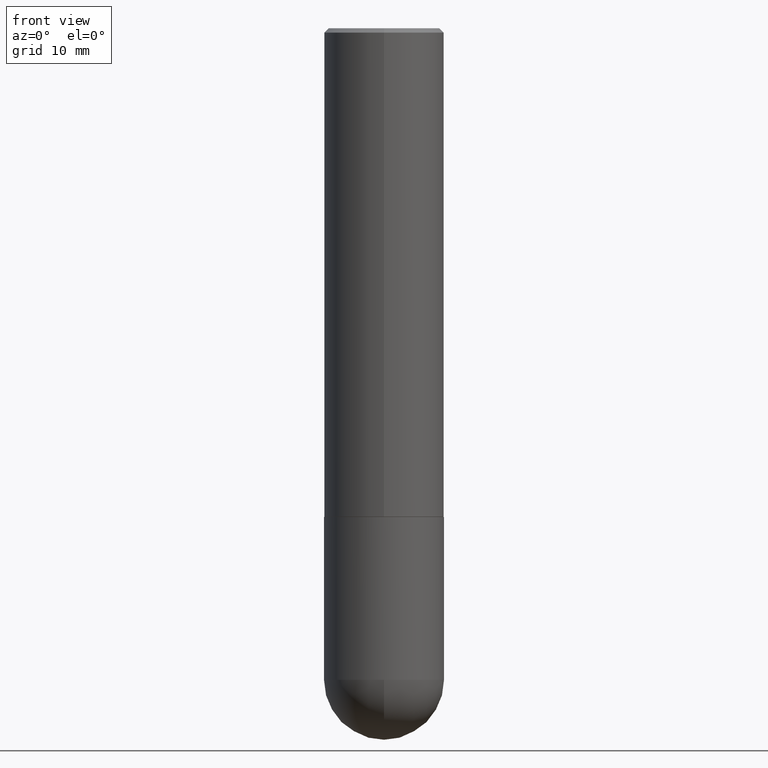
[diagram: clean part render]
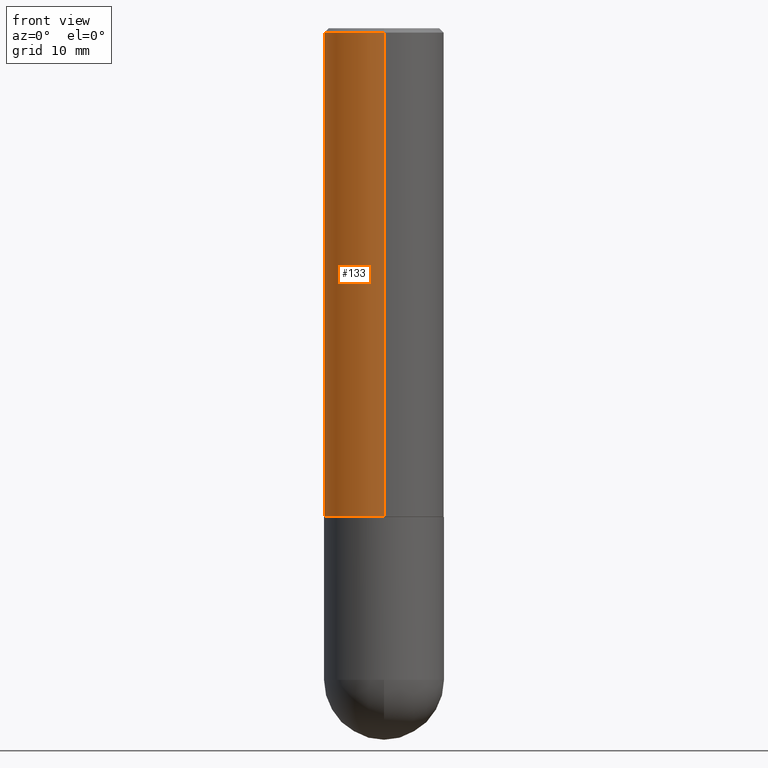
[diagram: same view with one face highlighted and labeled with its STEP entity id]
A machine part, front view. The second image highlights one B-rep face of the part: STEP entity #133.
In plain terms, the highlighted cylindrical surface (partial cylindrical patch) has radius 7.0002 mm, axis along (-0, 0, 1).
Its self-contained STEP definition (entity closure, byte-faithful):
#2 = CARTESIAN_POINT ( 'NONE',  ( 0.000000000000000000, 0.000000000000000000, 0.000000000000000000 ) ) ;
#4 = DIRECTION ( 'NONE',  ( -2.447914526065286047E-29, 3.487978928773040976E-15, 1.000000000000000000 ) ) ;
#10 = VERTEX_POINT ( 'NONE', #24 ) ;
#24 = CARTESIAN_POINT ( 'NONE',  ( -1.924504513970282495E-15, -0.2756000000000081718, -2.243099999999999206 ) ) ;
#35 = DIRECTION ( 'NONE',  ( -6.982962677686265922E-15, -1.000000000000000000, 3.487978928773041370E-15 ) ) ;
#41 = EDGE_LOOP ( 'NONE', ( #111, #91, #89, #125 ) ) ;
#50 = VECTOR ( 'NONE', #163, 39.37007874015748143 ) ;
#55 = VERTEX_POINT ( 'NONE', #400 ) ;
#56 = CARTESIAN_POINT ( 'NONE',  ( 5.490917073417043323E-29, -7.823885535130809142E-15, -2.243100000000000094 ) ) ;
#74 = CYLINDRICAL_SURFACE ( 'NONE', #376, 0.2756000000000001782 ) ;
#89 = ORIENTED_EDGE ( 'NONE', *, *, #371, .T. ) ;
#91 = ORIENTED_EDGE ( 'NONE', *, *, #250, .T. ) ;
#100 = AXIS2_PLACEMENT_3D ( 'NONE', #321, #4, #101 ) ;
#101 = DIRECTION ( 'NONE',  ( -6.982962677686265922E-15, -1.000000000000000000, 3.484816075009405599E-15 ) ) ;
#111 = ORIENTED_EDGE ( 'NONE', *, *, #144, .F. ) ;
#125 = ORIENTED_EDGE ( 'NONE', *, *, #201, .F. ) ;
#133 = ADVANCED_FACE ( 'NONE', ( #356 ), #74, .T. ) ;
#143 = LINE ( 'NONE', #148, #408 ) ;
#144 = EDGE_CURVE ( 'NONE', #180, #368, #358, .T. ) ;
#148 = CARTESIAN_POINT ( 'NONE',  ( -1.924504513970336137E-15, -0.2756000000000001782, 9.612869927698508130E-16 ) ) ;
#163 = DIRECTION ( 'NONE',  ( -2.447914526065285767E-29, 3.487978928773041370E-15, 1.000000000000000000 ) ) ;
#180 = VERTEX_POINT ( 'NONE', #293 ) ;
#198 = CIRCLE ( 'NONE', #353, 0.2756000000000003447 ) ;
#199 = DIRECTION ( 'NONE',  ( -2.447914526065286047E-29, 3.487978928773040976E-15, 1.000000000000000000 ) ) ;
#200 = CARTESIAN_POINT ( 'NONE',  ( 1.958255779754837378E-15, 0.2756000000000001782, -9.612869927698508130E-16 ) ) ;
#201 = EDGE_CURVE ( 'NONE', #368, #55, #411, .T. ) ;
#205 = DIRECTION ( 'NONE',  ( -6.982962677686265922E-15, -1.000000000000000000, 3.964946289788475374E-15 ) ) ;
#250 = EDGE_CURVE ( 'NONE', #180, #10, #198, .T. ) ;
#261 = DIRECTION ( 'NONE',  ( -2.447914526065286047E-29, 3.487978928773040976E-15, 1.000000000000000000 ) ) ;
#272 = CARTESIAN_POINT ( 'NONE',  ( 1.924504513970335743E-15, 0.2756000000000000116, -0.02000000000000105513 ) ) ;
#293 = CARTESIAN_POINT ( 'NONE',  ( 1.958255779754865383E-15, 0.2755999999999925176, -2.243100000000001426 ) ) ;
#321 = CARTESIAN_POINT ( 'NONE',  ( 4.895829052130595321E-31, -6.975957857546113555E-17, -0.02000000000000009409 ) ) ;
#342 = DIRECTION ( 'NONE',  ( -2.447914526065285767E-29, 3.487978928773041370E-15, 1.000000000000000000 ) ) ;
#353 = AXIS2_PLACEMENT_3D ( 'NONE', #56, #261, #205 ) ;
#356 = FACE_OUTER_BOUND ( 'NONE', #41, .T. ) ;
#358 = LINE ( 'NONE', #200, #50 ) ;
#368 = VERTEX_POINT ( 'NONE', #272 ) ;
#371 = EDGE_CURVE ( 'NONE', #10, #55, #143, .T. ) ;
#376 = AXIS2_PLACEMENT_3D ( 'NONE', #2, #199, #35 ) ;
#400 = CARTESIAN_POINT ( 'NONE',  ( -1.890753248185833713E-15, -0.2756000000000001227, -0.01999999999999913305 ) ) ;
#408 = VECTOR ( 'NONE', #342, 39.37007874015748143 ) ;
#411 = CIRCLE ( 'NONE', #100, 0.2756000000000000671 ) ;